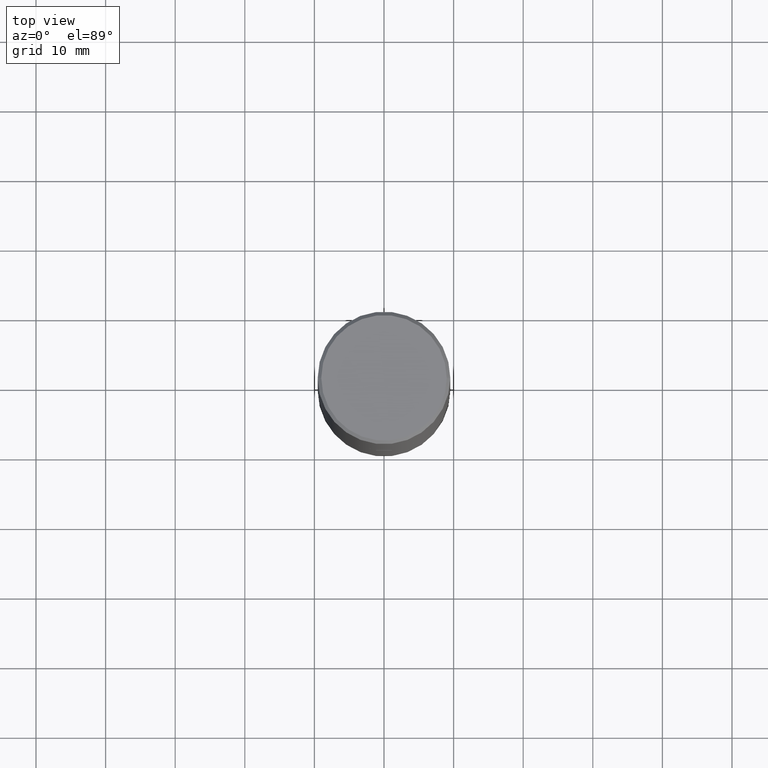
[diagram: clean part render]
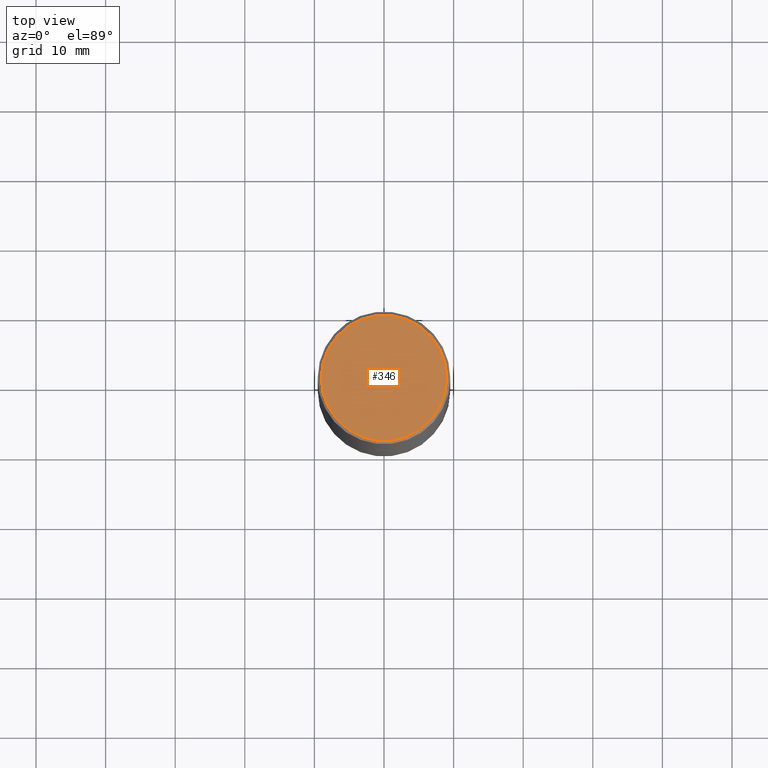
[diagram: same view with one face highlighted and labeled with its STEP entity id]
A machine part, top view. The second image highlights one B-rep face of the part: STEP entity #346.
In plain terms, the highlighted planar face has unit normal (0, -0, -1).
Its self-contained STEP definition (entity closure, byte-faithful):
#7 = AXIS2_PLACEMENT_3D ( 'NONE', #219, #330, #323 ) ;
#12 = EDGE_CURVE ( 'NONE', #146, #67, #342, .T. ) ;
#67 = VERTEX_POINT ( 'NONE', #167 ) ;
#123 = EDGE_LOOP ( 'NONE', ( #299, #152 ) ) ;
#128 = AXIS2_PLACEMENT_3D ( 'NONE', #139, #278, #363 ) ;
#138 = DIRECTION ( 'NONE',  ( 1.000000000000000000, -6.982962677686266711E-15, 4.876231632511990425E-29 ) ) ;
#139 = CARTESIAN_POINT ( 'NONE',  ( -2.087702828670439639E-46, 2.980686340760894400E-32, 8.537024980200822558E-18 ) ) ;
#146 = VERTEX_POINT ( 'NONE', #322 ) ;
#152 = ORIENTED_EDGE ( 'NONE', *, *, #12, .T. ) ;
#167 = CARTESIAN_POINT ( 'NONE',  ( -0.3549999999999998157, 2.513866563967054675E-15, 8.537024980183364388E-18 ) ) ;
#205 = AXIS2_PLACEMENT_3D ( 'NONE', #325, #269, #138 ) ;
#219 = CARTESIAN_POINT ( 'NONE',  ( 2.478951750578623420E-15, 0.3549999999999998157, -1.235207362799215622E-15 ) ) ;
#269 = DIRECTION ( 'NONE',  ( -2.445468806185136597E-29, 3.491481338843145583E-15, 1.000000000000000000 ) ) ;
#278 = DIRECTION ( 'NONE',  ( -2.445468806185136597E-29, 3.491481338843145583E-15, 1.000000000000000000 ) ) ;
#283 = CIRCLE ( 'NONE', #205, 0.3549999999999998157 ) ;
#284 = EDGE_CURVE ( 'NONE', #67, #146, #283, .T. ) ;
#292 = PLANE ( 'NONE',  #7 ) ;
#299 = ORIENTED_EDGE ( 'NONE', *, *, #284, .T. ) ;
#322 = CARTESIAN_POINT ( 'NONE',  ( 0.3549999999999998157, -2.538996582575039470E-15, 8.537024980218368550E-18 ) ) ;
#323 = DIRECTION ( 'NONE',  ( -1.000000000000000000, 6.982962677686265922E-15, -4.876176775795935793E-29 ) ) ;
#325 = CARTESIAN_POINT ( 'NONE',  ( -2.087702828670439639E-46, 2.980686340760894400E-32, 8.537024980200822558E-18 ) ) ;
#330 = DIRECTION ( 'NONE',  ( 2.438088387897960049E-29, -3.491481338843145188E-15, -1.000000000000000000 ) ) ;
#342 = CIRCLE ( 'NONE', #128, 0.3549999999999998157 ) ;
#346 = ADVANCED_FACE ( 'NONE', ( #349 ), #292, .F. ) ;
#349 = FACE_OUTER_BOUND ( 'NONE', #123, .T. ) ;
#363 = DIRECTION ( 'NONE',  ( 1.000000000000000000, -6.982962677686266711E-15, 4.876231632511990425E-29 ) ) ;